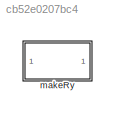
MODEL slx_cb52e0207bc4
KIND library
CONFIG AbsTol = auto
CONFIG EnableMultiTasking = off
CONFIG FixedStep = auto
CONFIG MaxStep = auto
CONFIG MinStep = auto
CONFIG RelTol = 1e-3
CONFIG SampleTimeConstraint = Unconstrained
CONFIG Solver = VariableStepAuto
CONFIG SolverName = VariableStepAuto
CONFIG StartTime = 0.0
CONFIG StopTime = 10.0
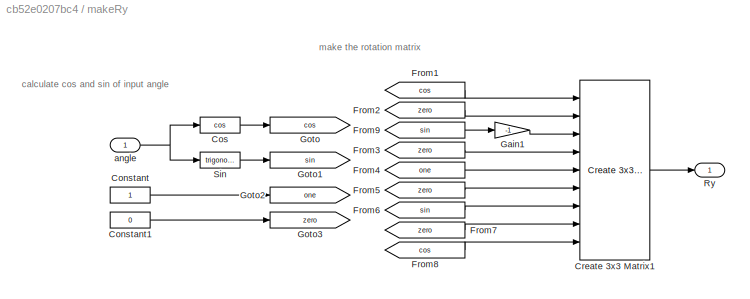
BLOCK [SubSystem] makeRy
  Ports = [1, 1]
  RequestExecContextInheritance = off
BLOCK [Constant] makeRy/Constant
  VectorParams1D = off
BLOCK [Constant] makeRy/Constant1
  Value = 0
  VectorParams1D = off
BLOCK [Trigonometry] makeRy/Cos
  Operator = cos
  Ports = [1, 1]
BLOCK [Reference] makeRy/Create 3x3 Matrix1  REF=sharedutil/Create 3x3 Matrix
  Ports = [9, 1]
  SourceBlock = sharedutil/Create 3x3 Matrix
  SourceProductBaseCode = AE,PW,MT,VE,VP
  SourceType = Create 3x3 Matrix
BLOCK [From] makeRy/From1
  GotoTag = cos
BLOCK [From] makeRy/From2
  GotoTag = zero
BLOCK [From] makeRy/From3
  GotoTag = zero
BLOCK [From] makeRy/From4
  GotoTag = one
BLOCK [From] makeRy/From5
  GotoTag = zero
BLOCK [From] makeRy/From6
  GotoTag = sin
BLOCK [From] makeRy/From7
  GotoTag = zero
BLOCK [From] makeRy/From8
  GotoTag = cos
BLOCK [From] makeRy/From9
  GotoTag = sin
BLOCK [Gain] makeRy/Gain1
  Gain = -1
BLOCK [Goto] makeRy/Goto
  GotoTag = cos
BLOCK [Goto] makeRy/Goto1
  GotoTag = sin
BLOCK [Goto] makeRy/Goto2
  GotoTag = one
BLOCK [Goto] makeRy/Goto3
  GotoTag = zero
BLOCK [Outport] makeRy/Ry
BLOCK [Trigonometry] makeRy/Sin
  Ports = [1, 1]
BLOCK [Inport] makeRy/angle
ANNOTATION makeRy: calculate cos and sin of input angle
ANNOTATION makeRy: make the rotation matrix
LINE makeRy/Constant1:1 -> makeRy/Goto3:1
LINE makeRy/Constant:1 -> makeRy/Goto2:1
LINE makeRy/Cos:1 -> makeRy/Goto:1
LINE makeRy/Create 3x3 Matrix1:1 -> makeRy/Ry:1
LINE makeRy/From1:1 -> makeRy/Create 3x3 Matrix1:1
LINE makeRy/From2:1 -> makeRy/Create 3x3 Matrix1:2
LINE makeRy/From3:1 -> makeRy/Create 3x3 Matrix1:4
LINE makeRy/From4:1 -> makeRy/Create 3x3 Matrix1:5
LINE makeRy/From5:1 -> makeRy/Create 3x3 Matrix1:6
LINE makeRy/From6:1 -> makeRy/Create 3x3 Matrix1:7
LINE makeRy/From7:1 -> makeRy/Create 3x3 Matrix1:8
LINE makeRy/From8:1 -> makeRy/Create 3x3 Matrix1:9
LINE makeRy/From9:1 -> makeRy/Gain1:1
LINE makeRy/Gain1:1 -> makeRy/Create 3x3 Matrix1:3
LINE makeRy/Sin:1 -> makeRy/Goto1:1
NET makeRy/angle:1 -> makeRy/Cos:1, makeRy/Sin:1
note: NET lines group one-source signal fan-out (src -> all destinations, sorted); 1:1 wires keep LINE
